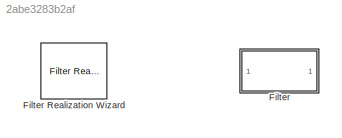
MODEL slx_2abe3283b2af
KIND model
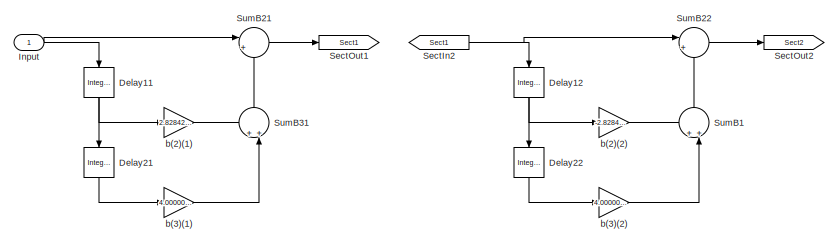
[diagram: Filter - part 1/2, left side, full height]
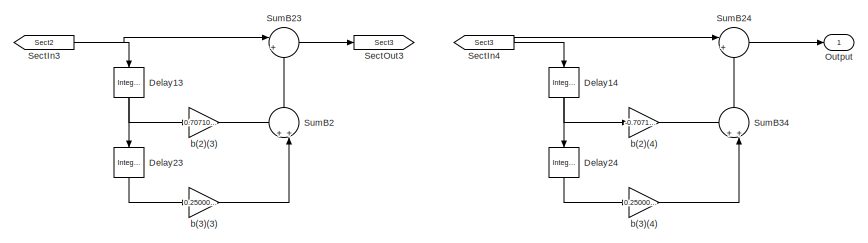
[diagram: Filter - part 2/2, right side, full height]
BLOCK [SubSystem] Filter
  ErrorFcn = dspFilterRealizedInBasicElemsAlgLoopErrFcnCallback
  Ports = [1, 1]
  RequestExecContextInheritance = off
  Tag = FilterWizardSubSystem
  UserDataPersistent = on
BLOCK [Reference] Filter Realization Wizard  REF=dsparch4/Filter
Realization
Wizard
  Ports = []
  SourceBlock = dsparch4/Filter\nRealization\nWizard
  SourceType = Filter Realization Wizard
BLOCK [Reference] Filter/Delay11  REF=simulink/Discrete/Integer Delay
  NumDelays = 1
  Ports = [1, 1]
  SourceBlock = simulink/Discrete/Integer Delay
  SourceType = Integer Delay
  samptime = -1
  vinit = 0.0
BLOCK [Reference] Filter/Delay12  REF=simulink/Discrete/Integer Delay
  NumDelays = 1
  Ports = [1, 1]
  SourceBlock = simulink/Discrete/Integer Delay
  SourceType = Integer Delay
  samptime = -1
  vinit = 0.0
BLOCK [Reference] Filter/Delay13  REF=simulink/Discrete/Integer Delay
  NumDelays = 1
  Ports = [1, 1]
  SourceBlock = simulink/Discrete/Integer Delay
  SourceType = Integer Delay
  samptime = -1
  vinit = 0.0
BLOCK [Reference] Filter/Delay14  REF=simulink/Discrete/Integer Delay
  NumDelays = 1
  Ports = [1, 1]
  SourceBlock = simulink/Discrete/Integer Delay
  SourceType = Integer Delay
  samptime = -1
  vinit = 0.0
BLOCK [Reference] Filter/Delay21  REF=simulink/Discrete/Integer Delay
  NumDelays = 1
  Ports = [1, 1]
  SourceBlock = simulink/Discrete/Integer Delay
  SourceType = Integer Delay
  samptime = -1
  vinit = 0.0
BLOCK [Reference] Filter/Delay22  REF=simulink/Discrete/Integer Delay
  NumDelays = 1
  Ports = [1, 1]
  SourceBlock = simulink/Discrete/Integer Delay
  SourceType = Integer Delay
  samptime = -1
  vinit = 0.0
BLOCK [Reference] Filter/Delay23  REF=simulink/Discrete/Integer Delay
  NumDelays = 1
  Ports = [1, 1]
  SourceBlock = simulink/Discrete/Integer Delay
  SourceType = Integer Delay
  samptime = -1
  vinit = 0.0
BLOCK [Reference] Filter/Delay24  REF=simulink/Discrete/Integer Delay
  NumDelays = 1
  Ports = [1, 1]
  SourceBlock = simulink/Discrete/Integer Delay
  SourceType = Integer Delay
  samptime = -1
  vinit = 0.0
BLOCK [Inport] Filter/Input
  IconDisplay = Port number
BLOCK [Outport] Filter/Output
  IconDisplay = Port number
BLOCK [From] Filter/SectIn2
  GotoTag = Sect1
BLOCK [From] Filter/SectIn3
  GotoTag = Sect2
BLOCK [From] Filter/SectIn4
  GotoTag = Sect3
BLOCK [Goto] Filter/SectOut1
  GotoTag = Sect1
BLOCK [Goto] Filter/SectOut2
  GotoTag = Sect2
BLOCK [Goto] Filter/SectOut3
  GotoTag = Sect3
BLOCK [Sum] Filter/SumB1
  IconShape = round
  InputSameDT = off
  Inputs = ++|
  Ports = [2, 1]
  RndMeth = Nearest
BLOCK [Sum] Filter/SumB2
  IconShape = round
  InputSameDT = off
  Inputs = ++|
  Ports = [2, 1]
  RndMeth = Nearest
BLOCK [Sum] Filter/SumB21
  IconShape = round
  InputSameDT = off
  Inputs = |++
  Ports = [2, 1]
  RndMeth = Nearest
BLOCK [Sum] Filter/SumB22
  IconShape = round
  InputSameDT = off
  Inputs = |++
  Ports = [2, 1]
  RndMeth = Nearest
BLOCK [Sum] Filter/SumB23
  IconShape = round
  InputSameDT = off
  Inputs = |++
  Ports = [2, 1]
  RndMeth = Nearest
BLOCK [Sum] Filter/SumB24
  IconShape = round
  InputSameDT = off
  Inputs = |++
  Ports = [2, 1]
  RndMeth = Nearest
BLOCK [Sum] Filter/SumB31
  IconShape = round
  InputSameDT = off
  Inputs = ++|
  Ports = [2, 1]
  RndMeth = Nearest
BLOCK [Sum] Filter/SumB34
  IconShape = round
  InputSameDT = off
  Inputs = ++|
  Ports = [2, 1]
  RndMeth = Nearest
BLOCK [Gain] Filter/b(2)(1)
  Gain = 2.8284271247461956
  ParamDataTypeStr = float('double')
  RndMeth = Nearest
BLOCK [Gain] Filter/b(2)(2)
  Gain = -2.8284271247461925
  ParamDataTypeStr = float('double')
  RndMeth = Nearest
BLOCK [Gain] Filter/b(2)(3)
  Gain = 0.70710678118654791
  ParamDataTypeStr = float('double')
  RndMeth = Nearest
BLOCK [Gain] Filter/b(2)(4)
  Gain = -0.70710678118654757
  ParamDataTypeStr = float('double')
  RndMeth = Nearest
BLOCK [Gain] Filter/b(3)(1)
  Gain = 4.0000000000000151
  ParamDataTypeStr = float('double')
  RndMeth = Nearest
BLOCK [Gain] Filter/b(3)(2)
  Gain = 4.0000000000000053
  ParamDataTypeStr = float('double')
  RndMeth = Nearest
BLOCK [Gain] Filter/b(3)(3)
  Gain = 0.25000000000000022
  ParamDataTypeStr = float('double')
  RndMeth = Nearest
BLOCK [Gain] Filter/b(3)(4)
  Gain = 0.25000000000000011
  ParamDataTypeStr = float('double')
  RndMeth = Nearest
NET Filter/Delay11:1 -> Filter/Delay21:1, Filter/b(2)(1):1
NET Filter/Delay12:1 -> Filter/Delay22:1, Filter/b(2)(2):1
NET Filter/Delay13:1 -> Filter/Delay23:1, Filter/b(2)(3):1
NET Filter/Delay14:1 -> Filter/Delay24:1, Filter/b(2)(4):1
LINE Filter/Delay21:1 -> Filter/b(3)(1):1
LINE Filter/Delay22:1 -> Filter/b(3)(2):1
LINE Filter/Delay23:1 -> Filter/b(3)(3):1
LINE Filter/Delay24:1 -> Filter/b(3)(4):1
NET Filter/Input:1 -> Filter/Delay11:1, Filter/SumB21:1
NET Filter/SectIn2:1 -> Filter/Delay12:1, Filter/SumB22:1
NET Filter/SectIn3:1 -> Filter/Delay13:1, Filter/SumB23:1
NET Filter/SectIn4:1 -> Filter/Delay14:1, Filter/SumB24:1
LINE Filter/SumB1:1 -> Filter/SumB22:2
LINE Filter/SumB21:1 -> Filter/SectOut1:1
LINE Filter/SumB22:1 -> Filter/SectOut2:1
LINE Filter/SumB23:1 -> Filter/SectOut3:1
LINE Filter/SumB24:1 -> Filter/Output:1
LINE Filter/SumB2:1 -> Filter/SumB23:2
LINE Filter/SumB31:1 -> Filter/SumB21:2
LINE Filter/SumB34:1 -> Filter/SumB24:2
LINE Filter/b(2)(1):1 -> Filter/SumB31:1
LINE Filter/b(2)(2):1 -> Filter/SumB1:1
LINE Filter/b(2)(3):1 -> Filter/SumB2:1
LINE Filter/b(2)(4):1 -> Filter/SumB34:1
LINE Filter/b(3)(1):1 -> Filter/SumB31:2
LINE Filter/b(3)(2):1 -> Filter/SumB1:2
LINE Filter/b(3)(3):1 -> Filter/SumB2:2
LINE Filter/b(3)(4):1 -> Filter/SumB34:2
note: NET lines group one-source signal fan-out (src -> all destinations, sorted); 1:1 wires keep LINE
